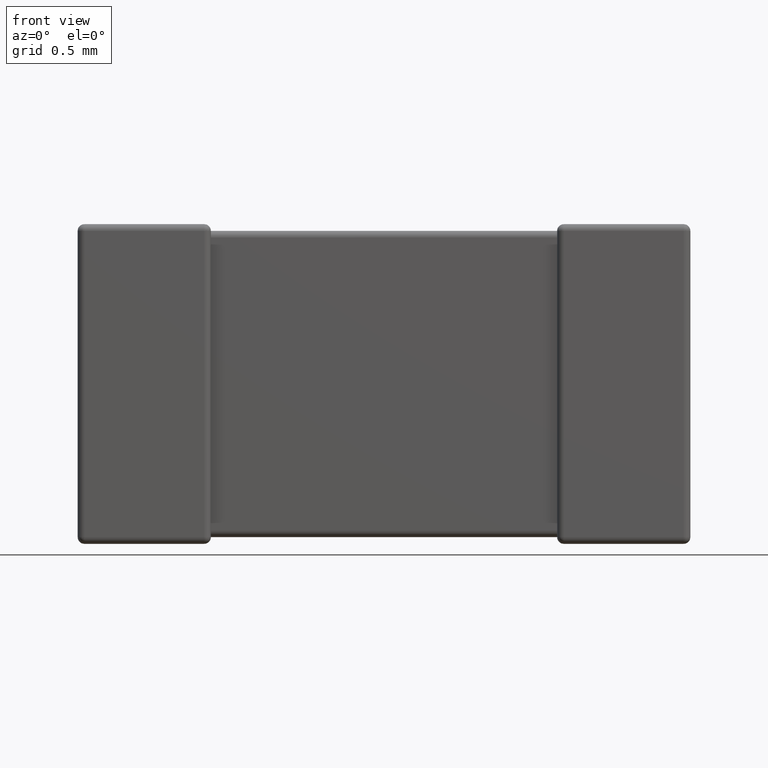
[diagram: clean part render]
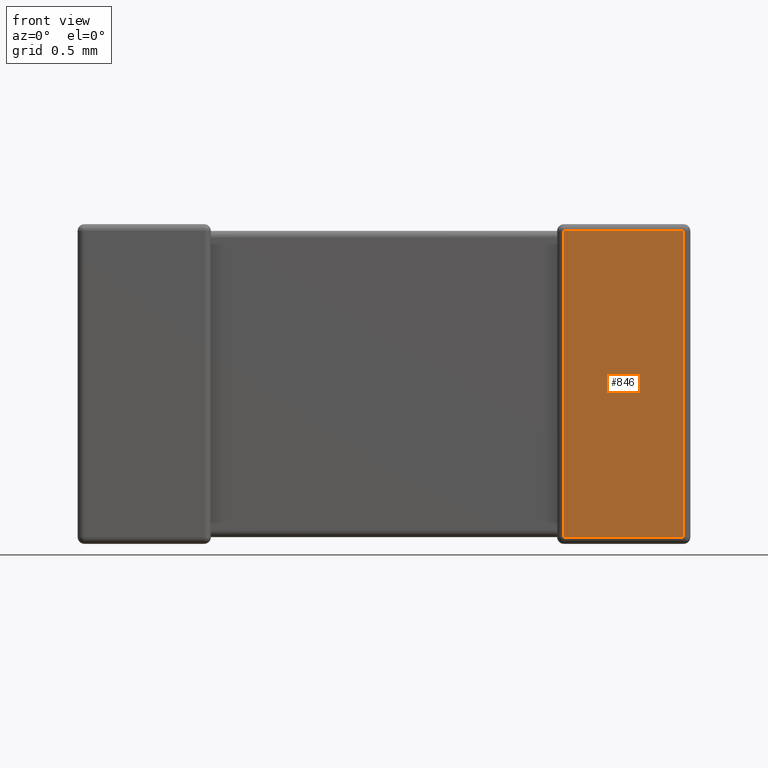
[diagram: same view with one face highlighted and labeled with its STEP entity id]
A machine part, front view. The second image highlights one B-rep face of the part: STEP entity #846.
In plain terms, the highlighted planar face has unit normal (-0, 1, 0).
Its self-contained STEP definition (entity closure, byte-faithful):
#54 = VECTOR ( 'NONE', #4429, 1000.000000000000000 ) ;
#323 = EDGE_CURVE ( 'NONE', #1292, #799, #366, .T. ) ;
#366 = LINE ( 'NONE', #1795, #3176 ) ;
#782 = CARTESIAN_POINT ( 'NONE',  ( 3.450000000000000178, 0.000000000000000000, 0.000000000000000000 ) ) ;
#799 = VERTEX_POINT ( 'NONE', #3904 ) ;
#826 = CARTESIAN_POINT ( 'NONE',  ( 2.737440000000000317, 0.000000000000000000, -1.762560000000000127 ) ) ;
#846 = ADVANCED_FACE ( 'NONE', ( #2925 ), #2951, .F. ) ;
#953 = VECTOR ( 'NONE', #3614, 1000.000000000000000 ) ;
#1085 = LINE ( 'NONE', #2110, #953 ) ;
#1089 = VERTEX_POINT ( 'NONE', #3236 ) ;
#1137 = EDGE_LOOP ( 'NONE', ( #4463, #1208, #3815, #2637 ) ) ;
#1208 = ORIENTED_EDGE ( 'NONE', *, *, #4024, .T. ) ;
#1219 = VERTEX_POINT ( 'NONE', #4398 ) ;
#1292 = VERTEX_POINT ( 'NONE', #826 ) ;
#1795 = CARTESIAN_POINT ( 'NONE',  ( 3.450000000000000178, 0.000000000000000000, -1.762560000000000127 ) ) ;
#2110 = CARTESIAN_POINT ( 'NONE',  ( 3.412560000000000038, 0.000000000000000000, 0.000000000000000000 ) ) ;
#2210 = DIRECTION ( 'NONE',  ( 0.000000000000000000, -0.000000000000000000, 1.000000000000000000 ) ) ;
#2546 = CARTESIAN_POINT ( 'NONE',  ( 3.450000000000000178, 0.000000000000000000, -0.03743999999999998718 ) ) ;
#2637 = ORIENTED_EDGE ( 'NONE', *, *, #3947, .T. ) ;
#2743 = AXIS2_PLACEMENT_3D ( 'NONE', #782, #4327, #2210 ) ;
#2925 = FACE_OUTER_BOUND ( 'NONE', #1137, .T. ) ;
#2951 = PLANE ( 'NONE',  #2743 ) ;
#3176 = VECTOR ( 'NONE', #4276, 1000.000000000000000 ) ;
#3236 = CARTESIAN_POINT ( 'NONE',  ( 2.737440000000000317, 0.000000000000000000, -0.03743999999999998718 ) ) ;
#3376 = CARTESIAN_POINT ( 'NONE',  ( 2.737440000000000317, 0.000000000000000000, 0.000000000000000000 ) ) ;
#3514 = VECTOR ( 'NONE', #3665, 1000.000000000000000 ) ;
#3614 = DIRECTION ( 'NONE',  ( -0.000000000000000000, -0.000000000000000000, 1.000000000000000000 ) ) ;
#3665 = DIRECTION ( 'NONE',  ( -1.000000000000000000, 0.000000000000000000, 0.000000000000000000 ) ) ;
#3815 = ORIENTED_EDGE ( 'NONE', *, *, #323, .T. ) ;
#3904 = CARTESIAN_POINT ( 'NONE',  ( 3.412560000000000038, 0.000000000000000000, -1.762560000000000127 ) ) ;
#3947 = EDGE_CURVE ( 'NONE', #799, #1219, #1085, .T. ) ;
#3986 = EDGE_CURVE ( 'NONE', #1219, #1089, #4308, .T. ) ;
#4024 = EDGE_CURVE ( 'NONE', #1089, #1292, #4097, .T. ) ;
#4097 = LINE ( 'NONE', #3376, #54 ) ;
#4276 = DIRECTION ( 'NONE',  ( 1.000000000000000000, 0.000000000000000000, -0.000000000000000000 ) ) ;
#4308 = LINE ( 'NONE', #2546, #3514 ) ;
#4327 = DIRECTION ( 'NONE',  ( -0.000000000000000000, 1.000000000000000000, 0.000000000000000000 ) ) ;
#4398 = CARTESIAN_POINT ( 'NONE',  ( 3.412560000000000038, 0.000000000000000000, -0.03743999999999998718 ) ) ;
#4429 = DIRECTION ( 'NONE',  ( 0.000000000000000000, 0.000000000000000000, -1.000000000000000000 ) ) ;
#4463 = ORIENTED_EDGE ( 'NONE', *, *, #3986, .T. ) ;